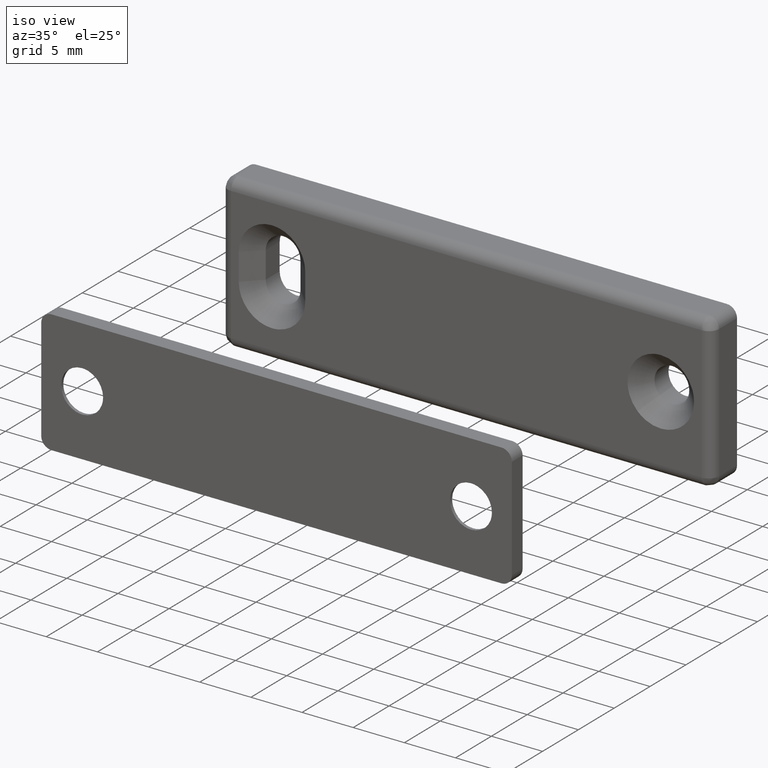
[diagram: clean part render]
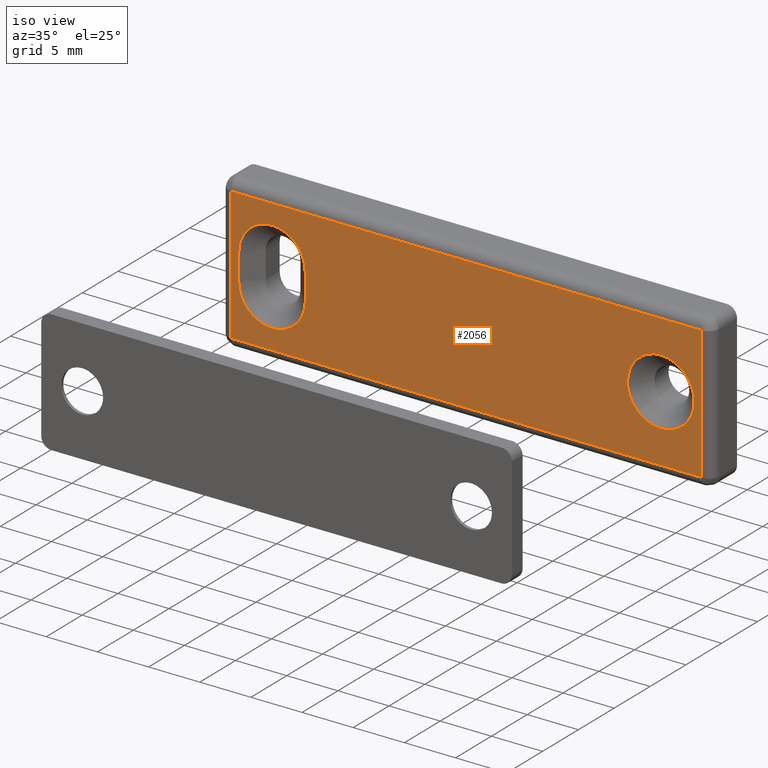
[diagram: same view with one face highlighted and labeled with its STEP entity id]
A machine part, iso view. The second image highlights one B-rep face of the part: STEP entity #2056.
In plain terms, the highlighted face is a freeform B-spline surface patch.
Its self-contained STEP definition (entity closure, byte-faithful):
#1558=CARTESIAN_POINT('',(19.0,-3.500000000000000,-3.250000000000055));
#1559=VERTEX_POINT('',#1558);
#1560=CARTESIAN_POINT('',(16.722045132165889,-3.499999885409844,-2.318063714230791));
#1561=VERTEX_POINT('',#1560);
#1562=CARTESIAN_POINT('',(19.0,-3.500000000000000,-3.250000000000055));
#1563=CARTESIAN_POINT('',(18.697607892742312,-3.499999984788471,-3.250121400243712));
#1564=CARTESIAN_POINT('',(18.198105243559311,-3.499999959661515,-3.179742121120433));
#1565=CARTESIAN_POINT('',(17.410416331219938,-3.499999920037647,-2.874120010928184));
#1566=CARTESIAN_POINT('',(16.965726481155411,-3.499999897667975,-2.557814374655005));
#1567=CARTESIAN_POINT('',(16.722045132165889,-3.499999885409844,-2.318063714230791));
#1568=B_SPLINE_CURVE_WITH_KNOTS('',3,(#1562,#1563,#1564,#1565,#1566,#1567),.UNSPECIFIED.,.F.,.U.,(4,1,1,4),(0.000000014456357,0.907138521281176,1.498736342702325,2.524197785320938),.UNSPECIFIED.);
#1569=EDGE_CURVE('',#1559,#1561,#1568,.T.);
#1571=CARTESIAN_POINT('',(22.249999999999929,-3.500000000000000,-0.000000918319437));
#1572=VERTEX_POINT('',#1571);
#1573=CARTESIAN_POINT('',(22.249999999999929,-3.500000000000000,-0.000000918319437));
#1574=CARTESIAN_POINT('',(22.250025081995350,-3.499999999999990,-0.212710361076527));
#1575=CARTESIAN_POINT('',(22.206787746115619,-3.500000000000003,-0.651422310616468));
#1576=CARTESIAN_POINT('',(22.012829472099320,-3.500000000000008,-1.277027335884819));
#1577=CARTESIAN_POINT('',(21.677888885851161,-3.499999999999998,-1.885610164434571));
#1578=CARTESIAN_POINT('',(21.228848871218752,-3.500000000000006,-2.399760565016961));
#1579=CARTESIAN_POINT('',(20.703065136577539,-3.499999999999999,-2.789669060520429));
#1580=CARTESIAN_POINT('',(20.199407735829311,-3.500000000000005,-3.035471596297148));
#1581=CARTESIAN_POINT('',(19.638113639249649,-3.499999999999981,-3.205738048355036));
#1582=CARTESIAN_POINT('',(19.239302101961350,-3.500000000000036,-3.250046478635304));
#1583=CARTESIAN_POINT('',(19.0,-3.500000000000000,-3.250000000000055));
#1584=B_SPLINE_CURVE_WITH_KNOTS('',3,(#1573,#1574,#1575,#1576,#1577,#1578,#1579,#1580,#1581,#1582,#1583),.UNSPECIFIED.,.F.,.U.,(4,1,1,1,1,1,1,1,4),(0.000000049636303,0.638128485482515,1.316164610092609,1.954308369364874,2.712090603502074,3.350226631716137,3.908609251869823,4.387222242758207,5.105119576763237),.UNSPECIFIED.);
#1585=EDGE_CURVE('',#1572,#1559,#1584,.T.);
#1587=CARTESIAN_POINT('',(21.277954867834111,-3.499999885409844,2.318063714230791));
#1588=VERTEX_POINT('',#1587);
#1589=CARTESIAN_POINT('',(21.277954867834111,-3.499999885409844,2.318063714230791));
#1590=CARTESIAN_POINT('',(21.421781437222648,-3.499999892395586,2.176747937039647));
#1591=CARTESIAN_POINT('',(21.691725066970740,-3.499999908205708,1.856922104374545));
#1592=CARTESIAN_POINT('',(22.000995110476161,-3.499999935615924,1.302435680552355));
#1593=CARTESIAN_POINT('',(22.203016785264069,-3.499999966776063,0.672092716983633));
#1594=CARTESIAN_POINT('',(22.250037531504081,-3.499999988703352,0.228520446502174));
#1595=CARTESIAN_POINT('',(22.249999999999929,-3.500000000000000,-0.000000918319437));
#1596=B_SPLINE_CURVE_WITH_KNOTS('',3,(#1589,#1590,#1591,#1592,#1593,#1594,#1595),.UNSPECIFIED.,.F.,.U.,(4,1,1,1,4),(0.000000013926984,0.604903971390852,1.250141869528018,1.895364904139273,2.580922968900885),.UNSPECIFIED.);
#1597=EDGE_CURVE('',#1588,#1572,#1596,.T.);
#1633=CARTESIAN_POINT('',(15.750000000000069,-3.500000000000000,0.000000918319435));
#1634=VERTEX_POINT('',#1633);
#1635=CARTESIAN_POINT('',(16.722045132165889,-3.499999885409844,-2.318063714230791));
#1636=CARTESIAN_POINT('',(16.578218298480461,-3.499999892395526,-2.176749124576165));
#1637=CARTESIAN_POINT('',(16.290846557868161,-3.499999909225158,-1.836299319055887));
#1638=CARTESIAN_POINT('',(15.988101069244680,-3.499999936859043,-1.277288829264403));
#1639=CARTESIAN_POINT('',(15.794138445606320,-3.499999968104648,-0.645215365969156));
#1640=CARTESIAN_POINT('',(15.749964312943300,-3.499999988703459,-0.228518839111796));
#1641=CARTESIAN_POINT('',(15.750000000000069,-3.500000000000000,0.000000918319435));
#1642=B_SPLINE_CURVE_WITH_KNOTS('',3,(#1635,#1636,#1637,#1638,#1639,#1640,#1641),.UNSPECIFIED.,.F.,.U.,(4,1,1,1,4),(0.000000013924424,0.604903971389104,1.330780698627967,1.895364904138721,2.580922968900898),.UNSPECIFIED.);
#1643=EDGE_CURVE('',#1561,#1634,#1642,.T.);
#1650=CARTESIAN_POINT('',(19.0,-3.500000000000000,3.250000000000055));
#1651=VERTEX_POINT('',#1650);
#1652=CARTESIAN_POINT('',(19.0,-3.500000000000000,3.250000000000055));
#1653=CARTESIAN_POINT('',(19.249795139332360,-3.499999987434322,3.250054138248825));
#1654=CARTESIAN_POINT('',(19.709904486457528,-3.499999964288986,3.196683844451140));
#1655=CARTESIAN_POINT('',(20.310200915956042,-3.499999934091701,2.992638732764803));
#1656=CARTESIAN_POINT('',(20.829958769577740,-3.499999907945834,2.706223799906747));
#1657=CARTESIAN_POINT('',(21.127941486296699,-3.499999892956101,2.465519295732408));
#1658=CARTESIAN_POINT('',(21.277954867834111,-3.499999885409844,2.318063714230791));
#1659=B_SPLINE_CURVE_WITH_KNOTS('',3,(#1652,#1653,#1654,#1655,#1656,#1657,#1658),.UNSPECIFIED.,.F.,.U.,(4,1,1,1,4),(0.000000014456100,0.749373076768860,1.380415732606327,1.893148342615452,2.524197785320951),.UNSPECIFIED.);
#1660=EDGE_CURVE('',#1651,#1588,#1659,.T.);
#1662=CARTESIAN_POINT('',(15.750000000000069,-3.500000000000000,0.000000918319435));
#1663=CARTESIAN_POINT('',(15.749970317067859,-3.500000000000004,0.212711480949538));
#1664=CARTESIAN_POINT('',(15.786693765384729,-3.499999999999990,0.584940418446896));
#1665=CARTESIAN_POINT('',(15.960834358445140,-3.500000000000020,1.214512263683359));
#1666=CARTESIAN_POINT('',(16.278048577463640,-3.499999999999943,1.835220395707377));
#1667=CARTESIAN_POINT('',(16.771155447907301,-3.500000000000108,2.399761407130436));
#1668=CARTESIAN_POINT('',(17.264748661285690,-3.499999999999857,2.765785455348072));
#1669=CARTESIAN_POINT('',(17.739358055438618,-3.500000000000122,3.008335745150132));
#1670=CARTESIAN_POINT('',(18.295420400143058,-3.499999999999878,3.195848079870305));
#1671=CARTESIAN_POINT('',(18.734103600577310,-3.500000000000065,3.250066303583522));
#1672=CARTESIAN_POINT('',(19.0,-3.500000000000000,3.250000000000055));
#1673=B_SPLINE_CURVE_WITH_KNOTS('',3,(#1662,#1663,#1664,#1665,#1666,#1667,#1668,#1669,#1670,#1671,#1672),.UNSPECIFIED.,.F.,.U.,(4,1,1,1,1,1,1,1,4),(0.000000049640552,0.638128485486353,1.116744074268146,1.954308369367458,2.712090603503747,3.350226631717204,3.788956189633561,4.307446115583605,5.105119576763237),.UNSPECIFIED.);
#1674=EDGE_CURVE('',#1634,#1651,#1673,.T.);
#1933=CARTESIAN_POINT('',(-25.297699910843079,-3.500000000000000,7.149349974803478));
#1934=CARTESIAN_POINT('',(25.297701144659229,-3.500000000000000,7.149349974803478));
#1935=CARTESIAN_POINT('',(-25.297699910843079,-3.500000000000000,-7.149350323490650));
#1936=CARTESIAN_POINT('',(25.297701144659229,-3.500000000000000,-7.149350323490650));
#1937=B_SPLINE_SURFACE_WITH_KNOTS('',1,1,((#1933,#1935),(#1934,#1936)),.UNSPECIFIED.,.F.,.F.,.U.,(2,2),(2,2),(0.0,50.595401055502307),(0.0,14.298700298294129),.UNSPECIFIED.);
#1938=CARTESIAN_POINT('',(-23.0,-3.500000000000000,-6.500000000000000));
#1939=VERTEX_POINT('',#1938);
#1940=CARTESIAN_POINT('',(23.0,-3.500000000000000,-6.500000000000000));
#1941=VERTEX_POINT('',#1940);
#1942=CARTESIAN_POINT('',(-23.0,-3.500000000000000,-6.500000000000000));
#1943=CARTESIAN_POINT('',(23.0,-3.500000000000000,-6.500000000000000));
#1944=QUASI_UNIFORM_CURVE('',1,(#1942,#1943),.UNSPECIFIED.,.F.,.U.);
#1945=EDGE_CURVE('',#1939,#1941,#1944,.T.);
#1946=ORIENTED_EDGE('',*,*,#1945,.T.);
#1947=CARTESIAN_POINT('',(23.0,-3.500000000000000,6.500000000000000));
#1948=VERTEX_POINT('',#1947);
#1949=CARTESIAN_POINT('',(23.0,-3.500000000000000,-6.500000000000000));
#1950=CARTESIAN_POINT('',(23.0,-3.500000000000000,6.500000000000000));
#1951=QUASI_UNIFORM_CURVE('',1,(#1949,#1950),.UNSPECIFIED.,.F.,.U.);
#1952=EDGE_CURVE('',#1941,#1948,#1951,.T.);
#1953=ORIENTED_EDGE('',*,*,#1952,.T.);
#1954=CARTESIAN_POINT('',(-23.0,-3.500000000000000,6.500000000000000));
#1955=VERTEX_POINT('',#1954);
#1956=CARTESIAN_POINT('',(23.0,-3.500000000000000,6.500000000000000));
#1957=CARTESIAN_POINT('',(-23.0,-3.500000000000000,6.500000000000000));
#1958=QUASI_UNIFORM_CURVE('',1,(#1956,#1957),.UNSPECIFIED.,.F.,.U.);
#1959=EDGE_CURVE('',#1948,#1955,#1958,.T.);
#1960=ORIENTED_EDGE('',*,*,#1959,.T.);
#1961=CARTESIAN_POINT('',(-23.0,-3.500000000000000,6.500000000000000));
#1962=CARTESIAN_POINT('',(-23.0,-3.500000000000000,-6.500000000000000));
#1963=QUASI_UNIFORM_CURVE('',1,(#1961,#1962),.UNSPECIFIED.,.F.,.U.);
#1964=EDGE_CURVE('',#1955,#1939,#1963,.T.);
#1965=ORIENTED_EDGE('',*,*,#1964,.T.);
#1966=EDGE_LOOP('',(#1946,#1953,#1960,#1965));
#1967=FACE_OUTER_BOUND('',#1966,.T.);
#1968=CARTESIAN_POINT('',(-15.749999999999350,-3.500000000000000,1.300000000000156));
#1969=VERTEX_POINT('',#1968);
#1970=CARTESIAN_POINT('',(-15.749999999999700,-3.500000000000000,-1.300000000000066));
#1971=VERTEX_POINT('',#1970);
#1972=CARTESIAN_POINT('',(-15.749999999999350,-3.500000000000000,1.300000000000156));
#1973=CARTESIAN_POINT('',(-15.749999999999700,-3.500000000000000,-1.300000000000066));
#1974=QUASI_UNIFORM_CURVE('',1,(#1972,#1973),.UNSPECIFIED.,.F.,.U.);
#1975=EDGE_CURVE('',#1969,#1971,#1974,.T.);
#1976=ORIENTED_EDGE('',*,*,#1975,.T.);
#1977=CARTESIAN_POINT('',(-19.000000918317809,-3.500000000000000,-4.549999999999946));
#1978=VERTEX_POINT('',#1977);
#1979=CARTESIAN_POINT('',(-15.749999999999700,-3.500000000000000,-1.300000000000066));
#1980=CARTESIAN_POINT('',(-15.749899706851670,-3.499999999999991,-1.605779946288071));
#1981=CARTESIAN_POINT('',(-15.825602724026780,-3.500000000000027,-2.137505359617382));
#1982=CARTESIAN_POINT('',(-16.092741080215461,-3.499999999999977,-2.793665160439412));
#1983=CARTESIAN_POINT('',(-16.395337647771740,-3.500000000000022,-3.265043936197139));
#1984=CARTESIAN_POINT('',(-16.783838927965569,-3.500000000000008,-3.704484691454983));
#1985=CARTESIAN_POINT('',(-17.250338409164620,-3.499999999999993,-4.063947873906138));
#1986=CARTESIAN_POINT('',(-17.835884194937378,-3.500000000000012,-4.354191725230232));
#1987=CARTESIAN_POINT('',(-18.401751868657762,-3.499999999999971,-4.514517930131657));
#1988=CARTESIAN_POINT('',(-18.813882276720289,-3.500000000000023,-4.550012757969110));
#1989=CARTESIAN_POINT('',(-19.000000918317809,-3.500000000000000,-4.549999999999946));
#1990=B_SPLINE_CURVE_WITH_KNOTS('',3,(#1979,#1980,#1981,#1982,#1983,#1984,#1985,#1986,#1987,#1988,#1989),.UNSPECIFIED.,.F.,.U.,(4,1,1,1,1,1,1,1,4),(0.000000049309320,0.917319990778091,1.595356021108055,2.113841465109532,2.592427712502560,3.350227311285697,3.868725256263640,4.546760553985813,5.105120611928833),.UNSPECIFIED.);
#1991=EDGE_CURVE('',#1971,#1978,#1990,.T.);
#1992=ORIENTED_EDGE('',*,*,#1991,.T.);
#1993=CARTESIAN_POINT('',(-22.249999999999300,-3.500000000000000,-1.300000000002390));
#1994=VERTEX_POINT('',#1993);
#1995=CARTESIAN_POINT('',(-19.000000918317809,-3.500000000000000,-4.549999999999946));
#1996=CARTESIAN_POINT('',(-19.212707250009871,-3.499999999999996,-4.550017441708110));
#1997=CARTESIAN_POINT('',(-19.704616818459630,-3.500000000000010,-4.501583904438391));
#1998=CARTESIAN_POINT('',(-20.327035497433972,-3.499999999999999,-4.291759628810798));
#1999=CARTESIAN_POINT('',(-20.868326799448919,-3.500000000000011,-3.976179890485420));
#2000=CARTESIAN_POINT('',(-21.301562532934199,-3.499999999999995,-3.620673140124637));
#2001=CARTESIAN_POINT('',(-21.671388122448711,-3.500000000000006,-3.181141059950545));
#2002=CARTESIAN_POINT('',(-21.943804109352431,-3.499999999999997,-2.707023742759161));
#2003=CARTESIAN_POINT('',(-22.178916655134699,-3.500000000000005,-2.097597471220140));
#2004=CARTESIAN_POINT('',(-22.250160222767970,-3.500000000000001,-1.619089962532899));
#2005=CARTESIAN_POINT('',(-22.249999999999300,-3.500000000000000,-1.300000000002390));
#2006=B_SPLINE_CURVE_WITH_KNOTS('',3,(#1995,#1996,#1997,#1998,#1999,#2000,#2001,#2002,#2003,#2004,#2005),.UNSPECIFIED.,.F.,.U.,(4,1,1,1,1,1,1,1,4),(0.000000049634640,0.638128485481752,1.475702826001707,1.954308369365587,2.512693619632835,3.150811854888566,3.669304144564023,4.147910686656548,5.105119576762283),.UNSPECIFIED.);
#2007=EDGE_CURVE('',#1978,#1994,#2006,.T.);
#2008=ORIENTED_EDGE('',*,*,#2007,.T.);
#2009=CARTESIAN_POINT('',(-22.250000000000849,-3.500000000000000,1.299999999997580));
#2010=VERTEX_POINT('',#2009);
#2011=CARTESIAN_POINT('',(-22.249999999999300,-3.500000000000000,-1.300000000002390));
#2012=CARTESIAN_POINT('',(-22.250000000000849,-3.500000000000000,1.299999999997580));
#2013=QUASI_UNIFORM_CURVE('',1,(#2011,#2012),.UNSPECIFIED.,.F.,.U.);
#2014=EDGE_CURVE('',#1994,#2010,#2013,.T.);
#2015=ORIENTED_EDGE('',*,*,#2014,.T.);
#2016=CARTESIAN_POINT('',(-18.999999070020269,-3.500000000000000,4.550000000000761));
#2017=VERTEX_POINT('',#2016);
#2018=CARTESIAN_POINT('',(-22.250000000000849,-3.500000000000000,1.299999999997580));
#2019=CARTESIAN_POINT('',(-22.250019117903278,-3.500000000000000,1.512708576060529));
#2020=CARTESIAN_POINT('',(-22.206793460293898,-3.499999999999997,1.951424335745234));
#2021=CARTESIAN_POINT('',(-22.032615402237379,-3.500000000000011,2.513186374140894));
#2022=CARTESIAN_POINT('',(-21.777895225598929,-3.499999999999980,3.011514252957888));
#2023=CARTESIAN_POINT('',(-21.418394800212500,-3.500000000000014,3.509043189107078));
#2024=CARTESIAN_POINT('',(-20.909020908315298,-3.499999999999993,3.965016653154079));
#2025=CARTESIAN_POINT('',(-20.277029181711310,-3.500000000000020,4.312833031024786));
#2026=CARTESIAN_POINT('',(-19.651420937873379,-3.500000000000022,4.506783211361142));
#2027=CARTESIAN_POINT('',(-19.212711765673820,-3.499999999999992,4.550025015084522));
#2028=CARTESIAN_POINT('',(-18.999999070020269,-3.500000000000000,4.550000000000761));
#2029=B_SPLINE_CURVE_WITH_KNOTS('',3,(#2018,#2019,#2020,#2021,#2022,#2023,#2024,#2025,#2026,#2027,#2028),.UNSPECIFIED.,.F.,.U.,(4,1,1,1,1,1,1,1,4),(0.000000049312445,0.638128615417154,1.316164878391375,1.754894676093892,2.313276254184398,3.150812497042920,3.788956962975644,4.466983415916825,5.105120618504333),.UNSPECIFIED.);
#2030=EDGE_CURVE('',#2010,#2017,#2029,.T.);
#2031=ORIENTED_EDGE('',*,*,#2030,.T.);
#2032=CARTESIAN_POINT('',(-18.999999070020269,-3.500000000000000,4.550000000000761));
#2033=CARTESIAN_POINT('',(-18.787289060573411,-3.499999999999985,4.550025425949026));
#2034=CARTESIAN_POINT('',(-18.348579565830779,-3.500000000000038,4.506785673234435));
#2035=CARTESIAN_POINT('',(-17.722970466599040,-3.499999999999987,4.312832457839310));
#2036=CARTESIAN_POINT('',(-17.114392617657380,-3.500000000000029,3.977886356099582));
#2037=CARTESIAN_POINT('',(-16.600234258230191,-3.499999999999931,3.528851548208467));
#2038=CARTESIAN_POINT('',(-16.242175259810271,-3.500000000000090,3.045980732935963));
#2039=CARTESIAN_POINT('',(-15.972244712124080,-3.499999999999915,2.525771618817931));
#2040=CARTESIAN_POINT('',(-15.794511972990071,-3.500000000000025,1.964724891902845));
#2041=CARTESIAN_POINT('',(-15.749978356060190,-3.499999999999992,1.512711002793600));
#2042=CARTESIAN_POINT('',(-15.749999999999350,-3.500000000000000,1.300000000000156));
#2043=B_SPLINE_CURVE_WITH_KNOTS('',3,(#2032,#2033,#2034,#2035,#2036,#2037,#2038,#2039,#2040,#2041,#2042),.UNSPECIFIED.,.F.,.U.,(4,1,1,1,1,1,1,1,4),(0.000000049635744,0.638128484661313,1.316164608399545,1.954308366853443,2.712090600020115,3.350226627402996,3.749071678378094,4.466982498225803,5.105119570192231),.UNSPECIFIED.);
#2044=EDGE_CURVE('',#2017,#1969,#2043,.T.);
#2045=ORIENTED_EDGE('',*,*,#2044,.T.);
#2046=EDGE_LOOP('',(#1976,#1992,#2008,#2015,#2031,#2045));
#2047=FACE_BOUND('',#2046,.T.);
#2048=ORIENTED_EDGE('',*,*,#1585,.T.);
#2049=ORIENTED_EDGE('',*,*,#1569,.T.);
#2050=ORIENTED_EDGE('',*,*,#1643,.T.);
#2051=ORIENTED_EDGE('',*,*,#1674,.T.);
#2052=ORIENTED_EDGE('',*,*,#1660,.T.);
#2053=ORIENTED_EDGE('',*,*,#1597,.T.);
#2054=EDGE_LOOP('',(#2048,#2049,#2050,#2051,#2052,#2053));
#2055=FACE_BOUND('',#2054,.T.);
#2056=ADVANCED_FACE('',(#1967,#2047,#2055),#1937,.F.);